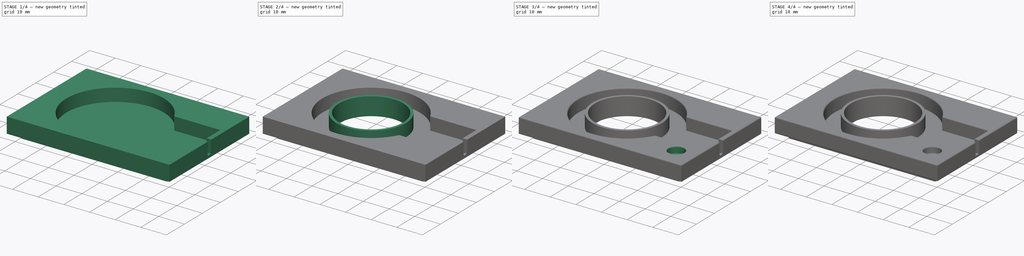
[diagram: build sequence overview — one tinted view per stage of 4, left to right]
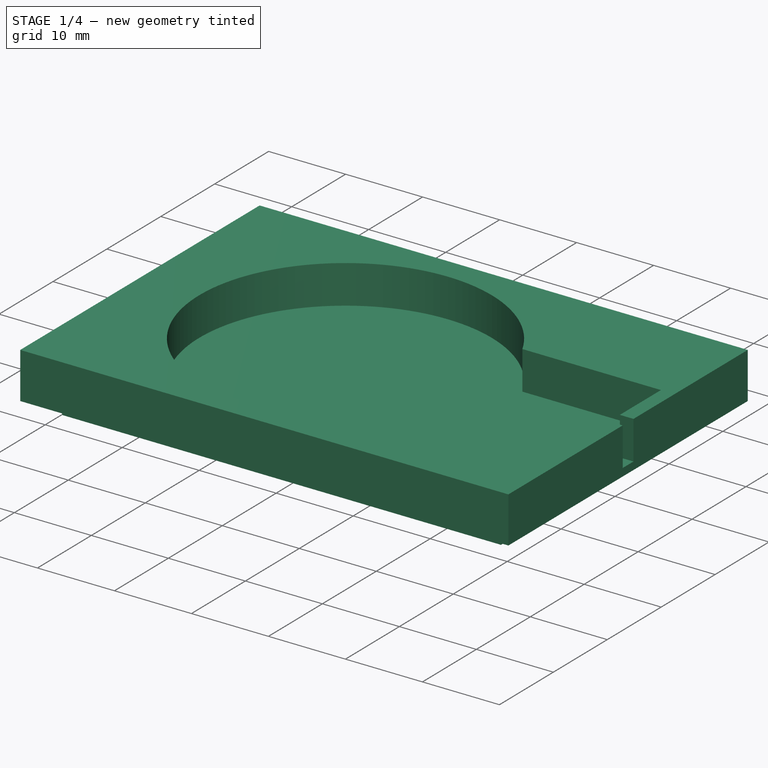
[diagram: stage 1 of 4 — iso view after this stage's code; geometry added in this stage tinted green]
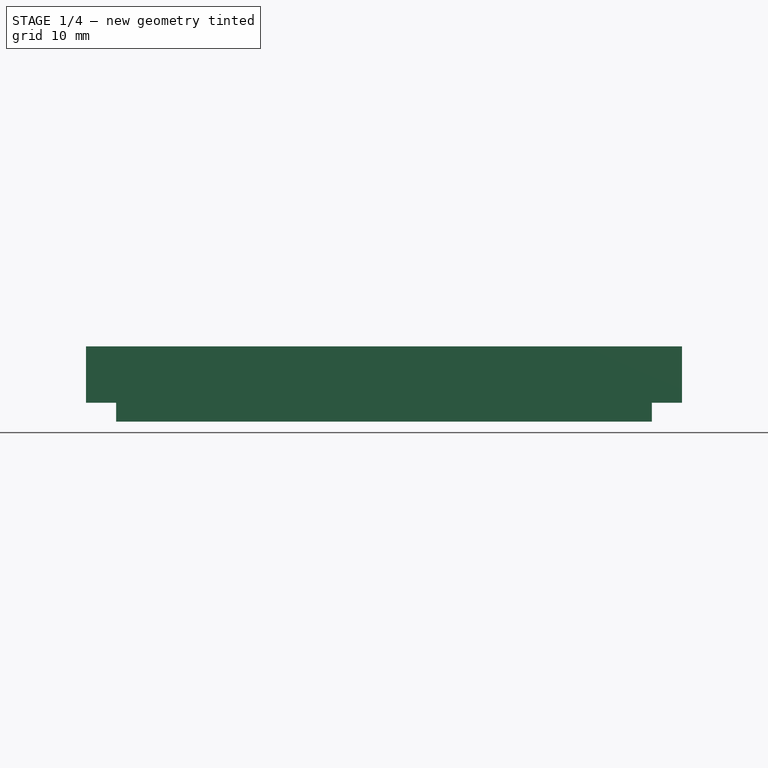
[diagram: stage 1 of 4 — front view after this stage's code; geometry added in this stage tinted green]
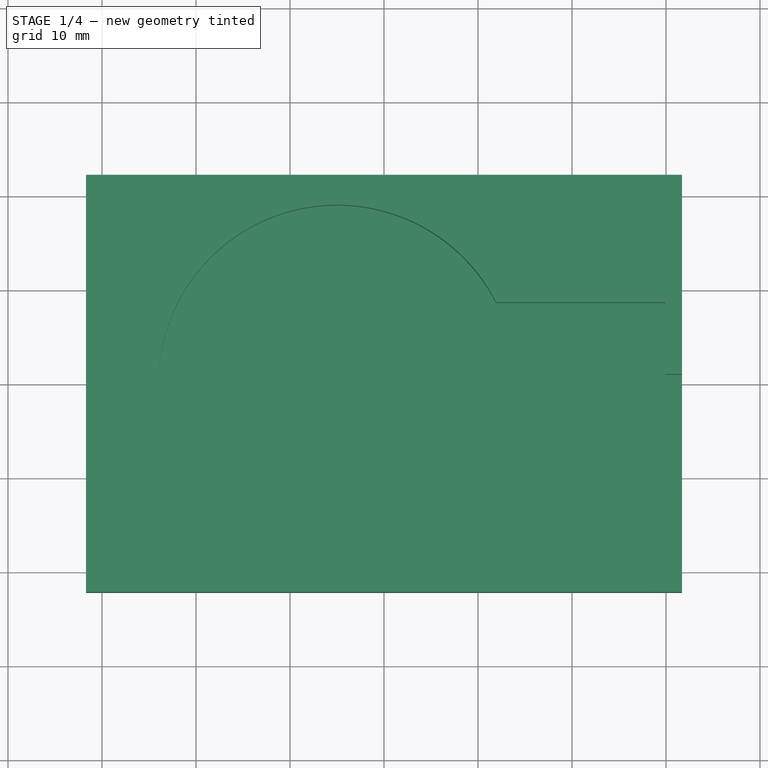
[diagram: stage 1 of 4 — top view after this stage's code; geometry added in this stage tinted green]
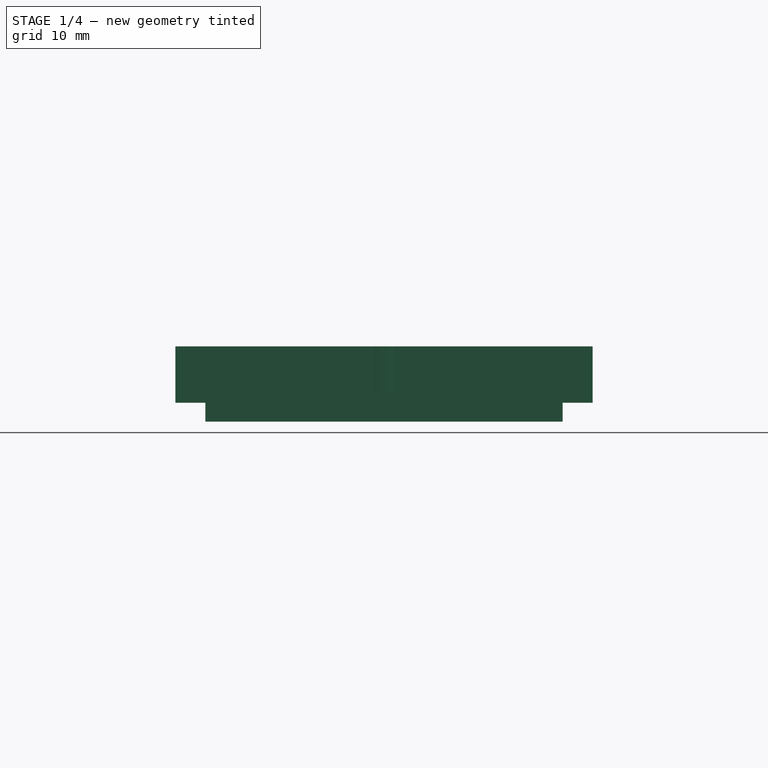
[diagram: stage 1 of 4 — right view after this stage's code; geometry added in this stage tinted green]
FCSTD DOCUMENT  (FreeCAD 0.19R24291 (Git))
Label: bruker7t_fus_single_coil3_shallow
License: All rights reserved
LicenseURL: http://en.wikipedia.org/wiki/All_rights_reserved
objects: Sketcher::SketchObject×8, PartDesign::Pocket×5, PartDesign::Pad×3, PartDesign::Fillet×2, Part::FeaturePython×1, PartDesign::Body×1, Part::Cut×1
note: 31 computed .brp shape members not serialized (recipe doc carries the construction recipe); baked Part::Feature solids carry a one-line shape summary decoded from their .brp

FEATURE [Sketcher::SketchObject] Sketch
  FullyConstrained = true
  MapMode = 5
  Support = -> [XY_Plane001]
  sketch-geometry (4):
    g0: LineSegment StartX=-31.7 StartY=22.2 StartZ=0 EndX=31.7 EndY=22.2 EndZ=0
    g1: LineSegment StartX=31.7 StartY=22.2 StartZ=0 EndX=31.7 EndY=-22.2 EndZ=0
    g2: LineSegment StartX=31.7 StartY=-22.2 StartZ=0 EndX=-31.7 EndY=-22.2 EndZ=0
    g3: LineSegment StartX=-31.7 StartY=-22.2 StartZ=0 EndX=-31.7 EndY=22.2 EndZ=0
  constraints (10):
    c: Coincident(g0,g1)
    c: Coincident(g1,g2)
    c: Coincident(g2,g3)
    c: Coincident(g3,g0)
    c: Horizontal(g2)
    c: Vertical(g1)
    c: Symmetric(g2,g0,g-1)
    c: Symmetric(g0,g0,g-2)
    c: DistanceX(g0,g0) = 63.4
    c: DistanceY(g3,g3) = 44.4
FEATURE [PartDesign::Pad] Pad  label="top_pad"
  Direction = (1,1,1)
  Length = 6
  Length2 = 0
  Profile = -> Sketch
  Refine = true
  Type = 0
FEATURE [Sketcher::SketchObject] Sketch001
  FullyConstrained = true
  MapMode = 5
  Placement = pos=(0,0,6) rot=(0,0,1;0rad)
  Support = -> [Pad]
  sketch-geometry (10):
    g0: LineSegment StartX=29.9291 StartY=1 StartZ=0 EndX=29.9291 EndY=8.62582 EndZ=0
    g1: LineSegment StartX=29.9291 StartY=8.62582 StartZ=0 EndX=11.9291 EndY=8.62582 EndZ=0
    g2: ArcOfCircle CenterX=-5 CenterY=0 CenterZ=0 NormalX=0 NormalY=0 NormalZ=1 AngleXU=0 Radius=19 StartAngle=0.471239 EndAngle=5.81195
    g3: LineSegment StartX=11.9291 StartY=-8.62582 StartZ=0 EndX=29.9291 EndY=-8.62582 EndZ=0
    g4: LineSegment StartX=29.9291 StartY=-8.62582 StartZ=0 EndX=29.9291 EndY=-1 EndZ=0
    g5: LineSegment StartX=29.9291 StartY=-1 StartZ=0 EndX=41.9291 EndY=-1 EndZ=0
    g6: LineSegment StartX=41.9291 StartY=-1 StartZ=0 EndX=41.9291 EndY=1 EndZ=0
    g7: LineSegment StartX=41.9291 StartY=1 StartZ=0 EndX=29.9291 EndY=1 EndZ=0
    g8: LineSegment StartX=-5 StartY=0 StartZ=0 EndX=11.9291 EndY=-8.62582 EndZ=0
    g9: LineSegment StartX=-5 StartY=0 StartZ=0 EndX=11.9291 EndY=8.62582 EndZ=0
  constraints (30):
    c: Coincident(g0,g1)
    c: Horizontal(g1)
    c: Coincident(g2,g3)
    c: Horizontal(g3)
    c: Coincident(g3,g4)
    c: Coincident(g4,g5)
    c: Horizontal(g5)
    c: Coincident(g5,g6)
    c: Vertical(g6)
    c: Coincident(g6,g7)
    c: Horizontal(g7)
    c: Vertical(g4)
    c: Vertical(g0)
    c: Equal(g4,g0)
    c: Equal(g1,g3)
    c: PointOnObject(g2,g-1)
    c: Radius(g2) = 19
    c: Coincident(g1,g2)
    c: PointOnObject(g2,g-1)
    c: Coincident(g8,g2)
    c: Coincident(g8,g2)
    c: Angle(g8,g-1) = 0.471239
    c: Coincident(g9,g2)
    c: Coincident(g9,g1)
    c: Angle(g-1,g9) = 0.471239
    c: DistanceX(g2,g-1) = 5
    c: DistanceY(g6,g6) = 2
    c: DistanceX(g5,g5) = 12
    c: DistanceX(g3,g3) = 18
    c: Coincident(g7,g0)
FEATURE [PartDesign::Pocket] Pocket  label="top_pocket"
  BaseFeature = -> Pad
  Length = 5
  Length2 = 100
  Profile = -> Sketch001
  Refine = true
  Type = 0
FEATURE [Sketcher::SketchObject] Sketch002
  FullyConstrained = true
  MapMode = 5
  Placement = pos=(0,0,0) rot=(1,0,0;3.14159rad)
  Support = -> [Pocket]
  sketch-geometry (4):
    g0: LineSegment StartX=-28.5 StartY=19 StartZ=0 EndX=28.5 EndY=19 EndZ=0
    g1: LineSegment StartX=28.5 StartY=19 StartZ=0 EndX=28.5 EndY=-19 EndZ=0
    g2: LineSegment StartX=28.5 StartY=-19 StartZ=0 EndX=-28.5 EndY=-19 EndZ=0
    g3: LineSegment StartX=-28.5 StartY=-19 StartZ=0 EndX=-28.5 EndY=19 EndZ=0
  constraints (10):
    c: Coincident(g0,g1)
    c: Coincident(g1,g2)
    c: Coincident(g2,g3)
    c: Coincident(g3,g0)
    c: Horizontal(g2)
    c: Vertical(g1)
    c: Symmetric(g2,g0,g-1)
    c: Symmetric(g0,g0,g-2)
    c: DistanceY(g3,g3) = 38
    c: DistanceX(g2,g2) = 57
FEATURE [PartDesign::Pad] Pad001  label="bottom_box_pad"
  BaseFeature = -> Pocket
  Direction = (1,1,1)
  Length = 2
  Length2 = 100
  Profile = -> Sketch002
  Refine = true
  Type = 0
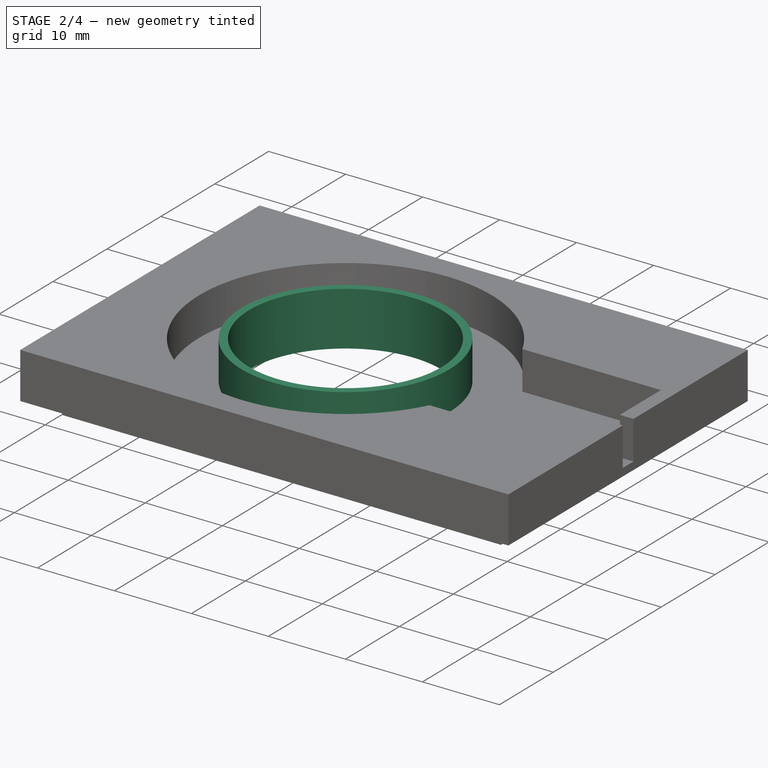
[diagram: stage 2 of 4 — iso view after this stage's code; geometry added in this stage tinted green]
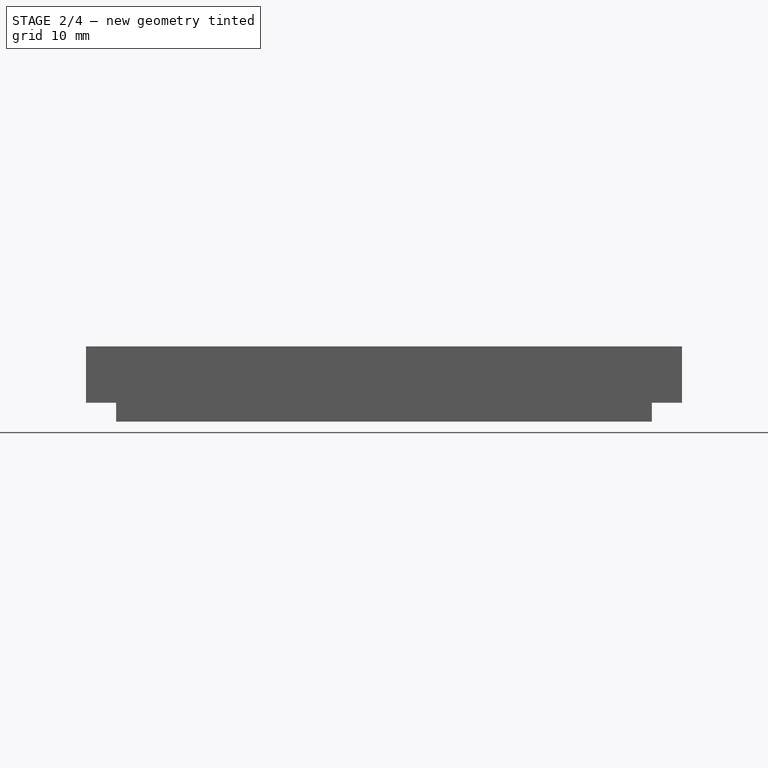
[diagram: stage 2 of 4 — front view after this stage's code; geometry added in this stage tinted green]
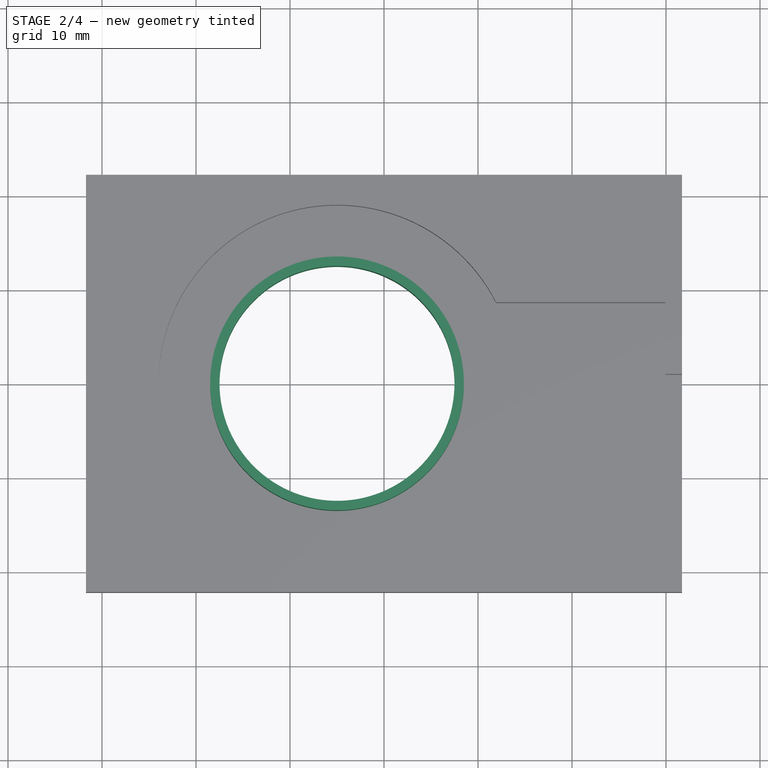
[diagram: stage 2 of 4 — top view after this stage's code; geometry added in this stage tinted green]
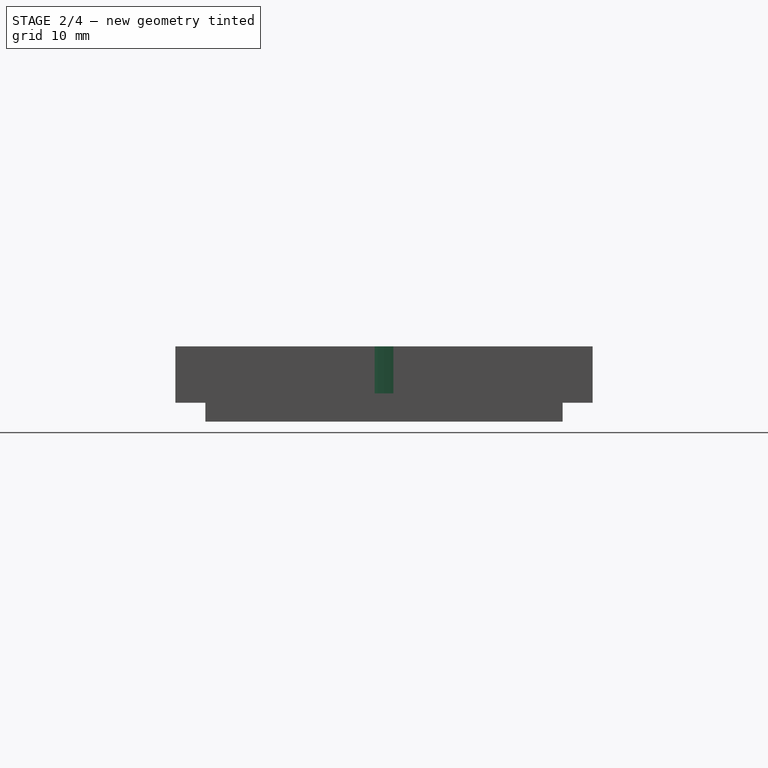
[diagram: stage 2 of 4 — right view after this stage's code; geometry added in this stage tinted green]
FEATURE [Sketcher::SketchObject] Sketch003
  FullyConstrained = true
  MapMode = 5
  Placement = pos=(0,0,-2) rot=(1,0,0;3.14159rad)
  Support = -> [Pad001]
  sketch-geometry (4):
    g0: LineSegment StartX=-26.8 StartY=17.3 StartZ=0 EndX=26.8 EndY=17.3 EndZ=0
    g1: LineSegment StartX=26.8 StartY=17.3 StartZ=0 EndX=26.8 EndY=-17.3 EndZ=0
    g2: LineSegment StartX=26.8 StartY=-17.3 StartZ=0 EndX=-26.8 EndY=-17.3 EndZ=0
    g3: LineSegment StartX=-26.8 StartY=-17.3 StartZ=0 EndX=-26.8 EndY=17.3 EndZ=0
  constraints (10):
    c: Coincident(g0,g1)
    c: Coincident(g1,g2)
    c: Coincident(g2,g3)
    c: Coincident(g3,g0)
    c: Horizontal(g2)
    c: Vertical(g1)
    c: Symmetric(g0,g2,g-1)
    c: Symmetric(g0,g0,g-2)
    c: DistanceX(g0,g0) = 53.6
    c: DistanceY(g3,g3) = 34.6
FEATURE [PartDesign::Pocket] Pocket001  label="bottom_box_pocket"
  BaseFeature = -> Pad001
  Length = 1
  Length2 = 100
  Profile = -> Sketch003
  Refine = true
  Type = 0
FEATURE [Sketcher::SketchObject] Sketch006
  FullyConstrained = true
  MapMode = 5
  Support = -> [XY_Plane001]
  sketch-geometry (1):
    g0: Circle CenterX=-5 CenterY=0 CenterZ=0 NormalX=0 NormalY=0 NormalZ=1 AngleXU=0 Radius=13.5
  constraints (3):
    c: PointOnObject(g0,g-1)
    c: DistanceX(g0,g-1) = 5
    c: Radius(g0) = 13.5
FEATURE [PartDesign::Pad] Pad002
  BaseFeature = -> Pocket001
  Direction = (1,1,1)
  Length = 6
  Length2 = 100
  Profile = -> Sketch006
  Refine = true
  Type = 0
FEATURE [Sketcher::SketchObject] Sketch007
  AttachmentOffset = pos=(0,0,6) rot=(0,0,1;0rad)
  FullyConstrained = true
  MapMode = 5
  Placement = pos=(0,0,6) rot=(0,0,1;0rad)
  Support = -> [XY_Plane001]
  sketch-geometry (1):
    g0: Circle CenterX=-5 CenterY=0 CenterZ=0 NormalX=0 NormalY=0 NormalZ=1 AngleXU=0 Radius=12.5
  constraints (3):
    c: PointOnObject(g0,g-1)
    c: DistanceX(g0,g-1) = 5
    c: Radius(g0) = 12.5
FEATURE [PartDesign::Pocket] Pocket002
  BaseFeature = -> Pad002
  Length = 6
  Length2 = 100
  Profile = -> Sketch007
  Refine = true
  Type = 1
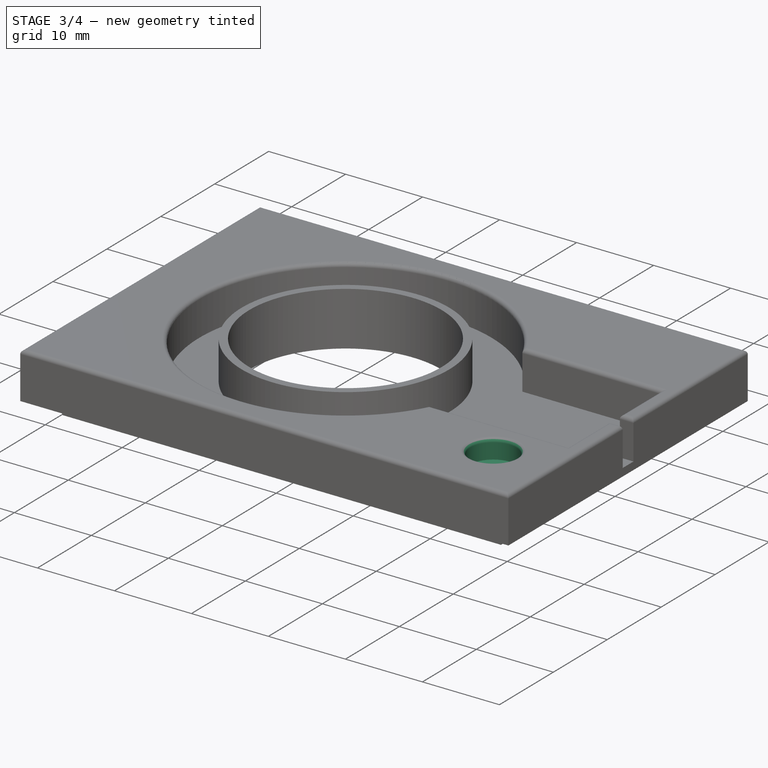
[diagram: stage 3 of 4 — iso view after this stage's code; geometry added in this stage tinted green]
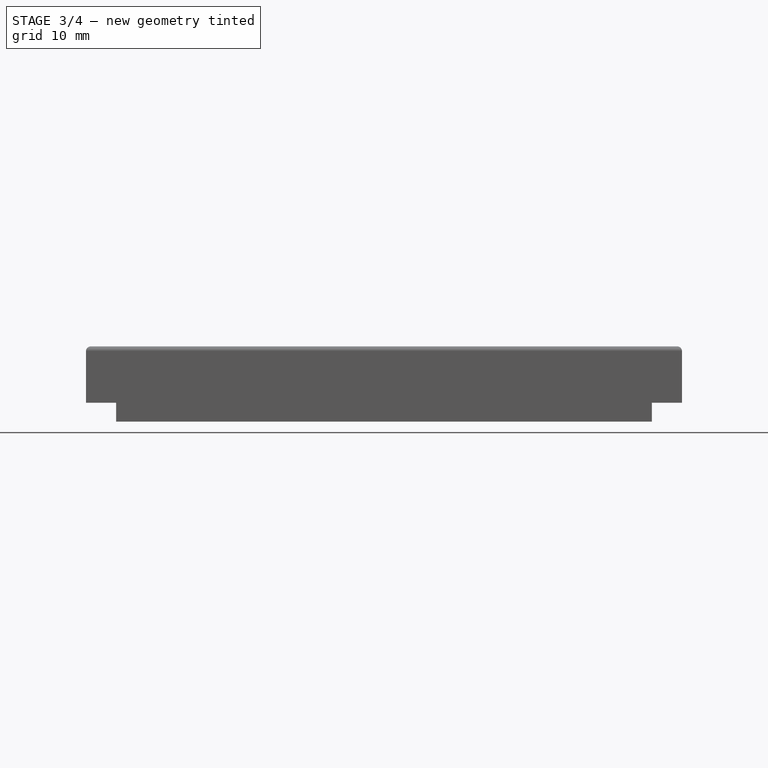
[diagram: stage 3 of 4 — front view after this stage's code; geometry added in this stage tinted green]
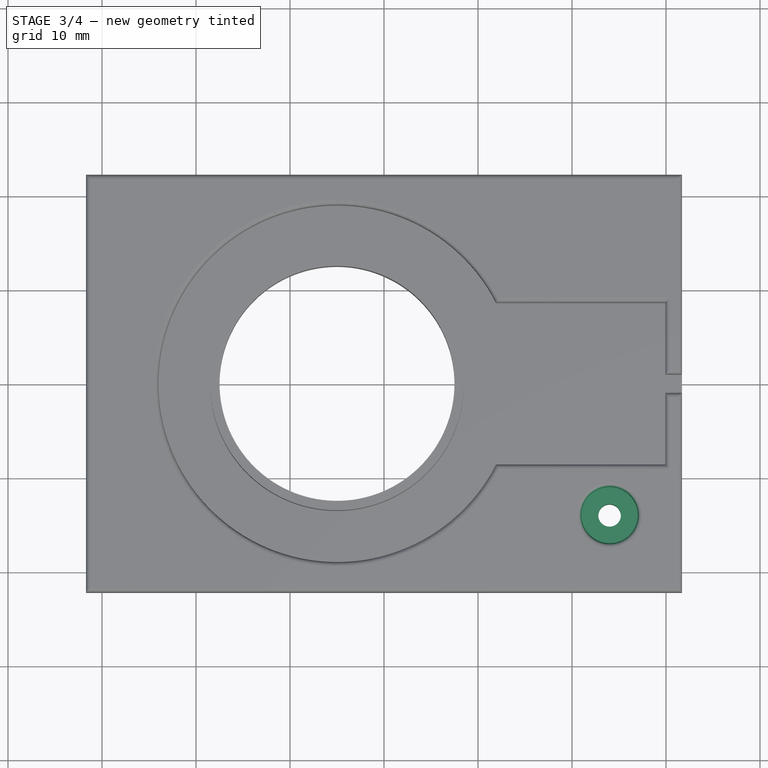
[diagram: stage 3 of 4 — top view after this stage's code; geometry added in this stage tinted green]
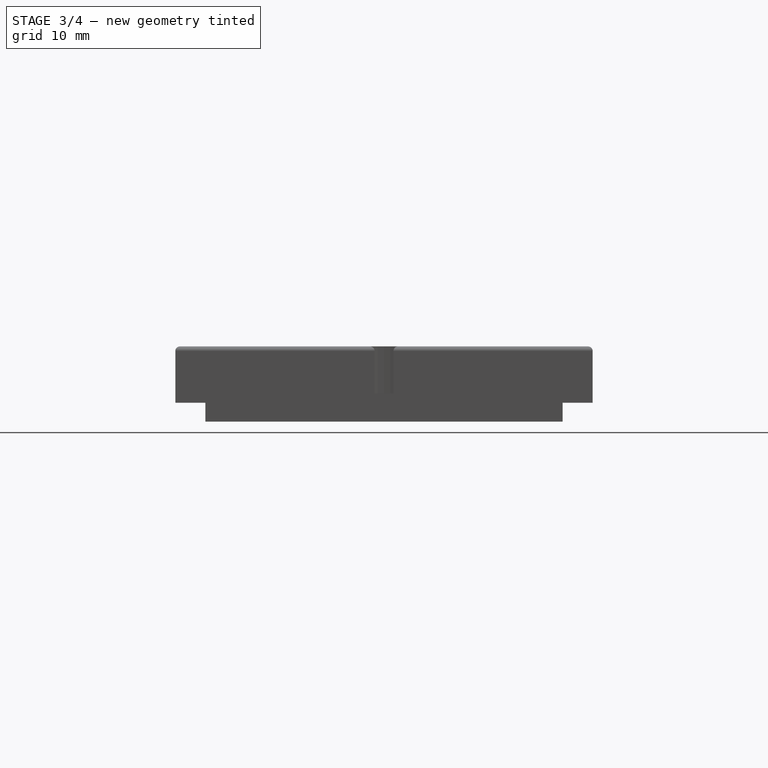
[diagram: stage 3 of 4 — right view after this stage's code; geometry added in this stage tinted green]
FEATURE [Sketcher::SketchObject] Sketch008
  AttachmentOffset = pos=(0,0,6) rot=(0,0,1;0rad)
  FullyConstrained = true
  MapMode = 5
  Placement = pos=(0,0,6) rot=(0,0,1;0rad)
  Support = -> [XY_Plane001]
  sketch-geometry (1):
    g0: Circle CenterX=24 CenterY=-14 CenterZ=0 NormalX=0 NormalY=0 NormalZ=1 AngleXU=0 Radius=1.2
  constraints (3):
    c: DistanceY(g0,g-1) = 14
    c: DistanceX(g-1,g0) = 24
    c: Radius(g0) = 1.2
FEATURE [PartDesign::Pocket] Pocket003
  BaseFeature = -> Pocket002
  Length = 5
  Length2 = 100
  Profile = -> Sketch008
  Refine = true
  Type = 1
FEATURE [Sketcher::SketchObject] Sketch009
  AttachmentOffset = pos=(0,0,6) rot=(0,0,1;0rad)
  FullyConstrained = true
  MapMode = 5
  Placement = pos=(0,0,6) rot=(0,0,1;0rad)
  Support = -> [XY_Plane001]
  sketch-geometry (1):
    g0: Circle CenterX=24 CenterY=-14 CenterZ=0 NormalX=0 NormalY=0 NormalZ=1 AngleXU=0 Radius=3
  constraints (3):
    c: DistanceY(g0,g-1) = 14
    c: DistanceX(g-1,g0) = 24
    c: Radius(g0) = 3
FEATURE [PartDesign::Pocket] Pocket004
  BaseFeature = -> Pocket003
  Length = 2.5
  Length2 = 100
  Profile = -> Sketch009
  Refine = true
  Type = 0
FEATURE [PartDesign::Fillet] Fillet
  Base = -> Pocket004 [Face5]
  BaseFeature = -> Pocket004
  Radius = 0.5
  Refine = true
  SupportTransform = false
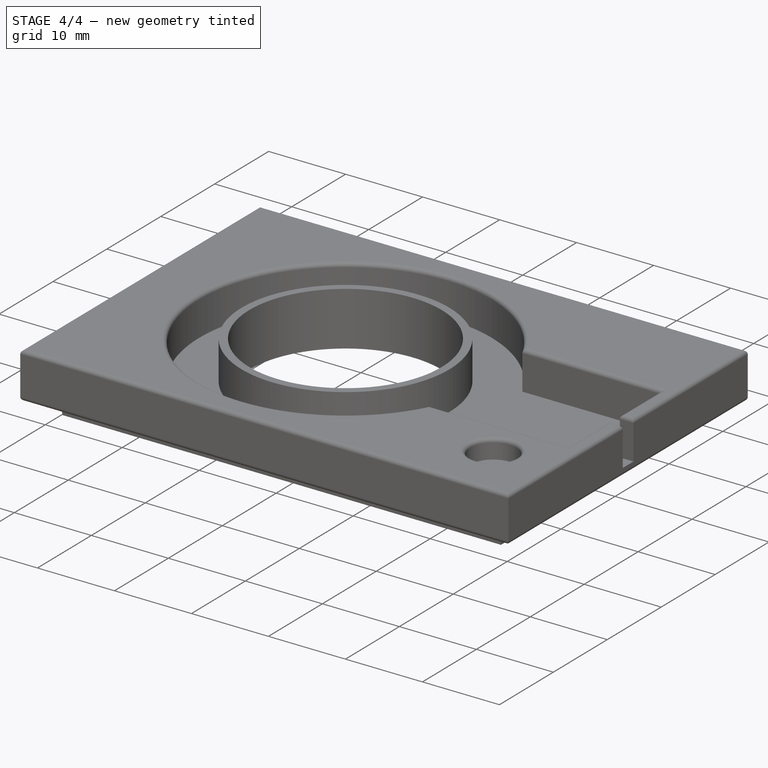
[diagram: stage 4 of 4 — iso view after this stage's code; geometry added in this stage tinted green]
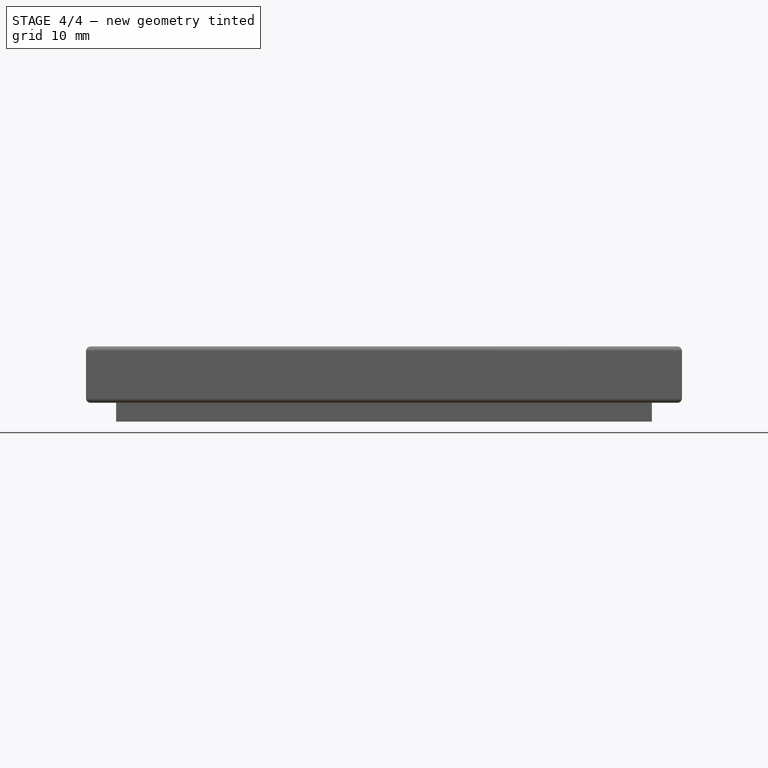
[diagram: stage 4 of 4 — front view after this stage's code; geometry added in this stage tinted green]
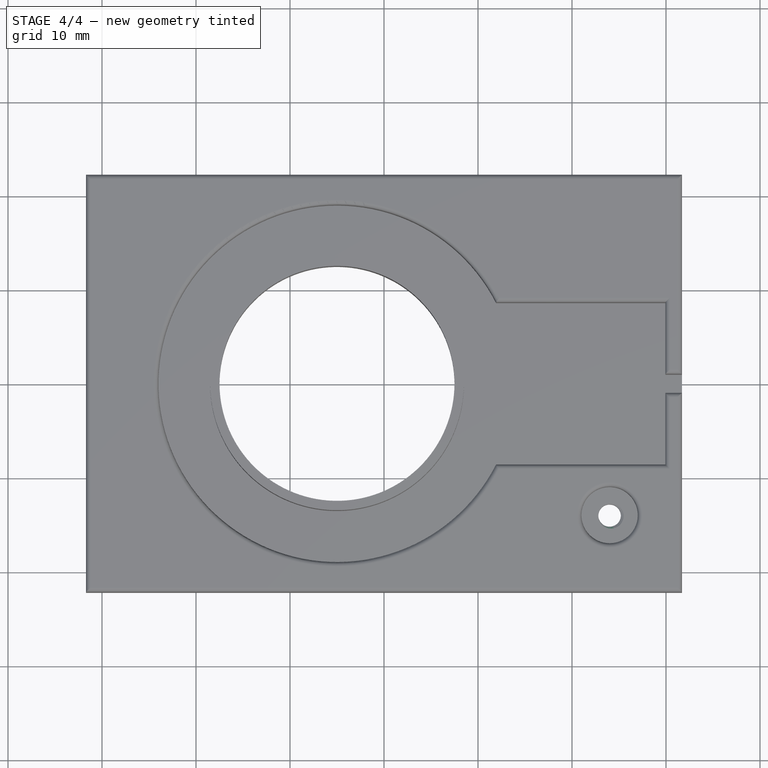
[diagram: stage 4 of 4 — top view after this stage's code; geometry added in this stage tinted green]
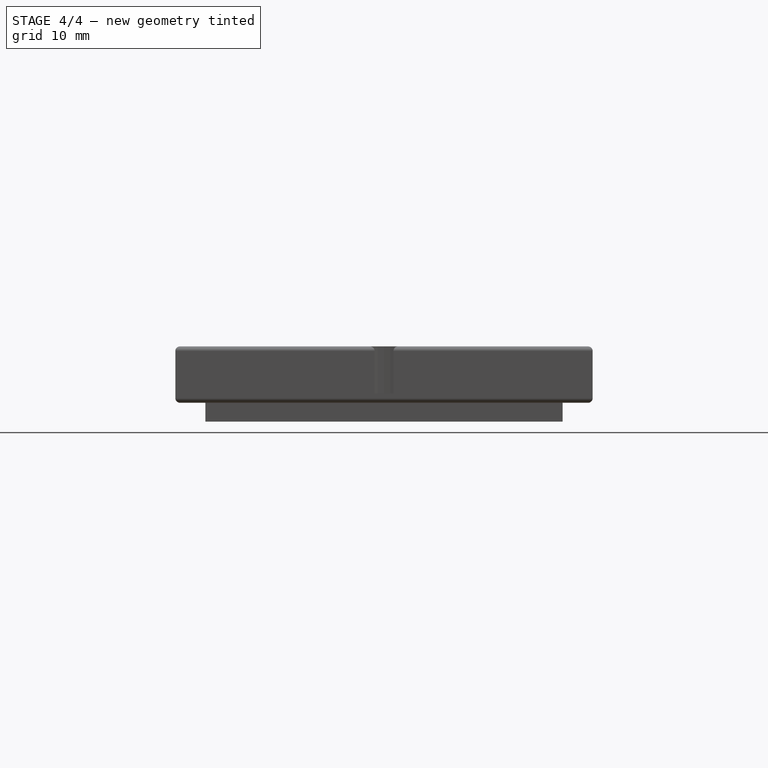
[diagram: stage 4 of 4 — right view after this stage's code; geometry added in this stage tinted green]
FEATURE [Part::FeaturePython] ThreadedRod  label="M3x10.0-ThreadedRod"  # Fasteners workbench fastener (typed FeaturePython)
  Placement = pos=(24,-14,6) rot=(0,0,1;0rad)
  diameter = 4
  invert = false
  length = 10
  matchOuter = false
  offset = 0
  thread = true
FEATURE [PartDesign::Fillet] Fillet001
  Base = -> Fillet [Edge12,Edge7,Edge11,Edge3]
  BaseFeature = -> Fillet
  Radius = 0.5
  Refine = true
  SupportTransform = false
FEATURE [PartDesign::Body] Body
  Group = -> [Sketch,Pad,Sketch001,Pocket,Sketch002,Pad001,Sketch003,Pocket001,Sketch006,Pad002,Sketch007,Pocket002,Sketch008,Pocket003,Sketch009,Pocket004,Fillet,Fillet001]
  Origin = -> Origin001
  Tip = -> Fillet001
FEATURE [Part::Cut] Cut
  Base = -> Body
  Refine = true
  Tool = -> ThreadedRod
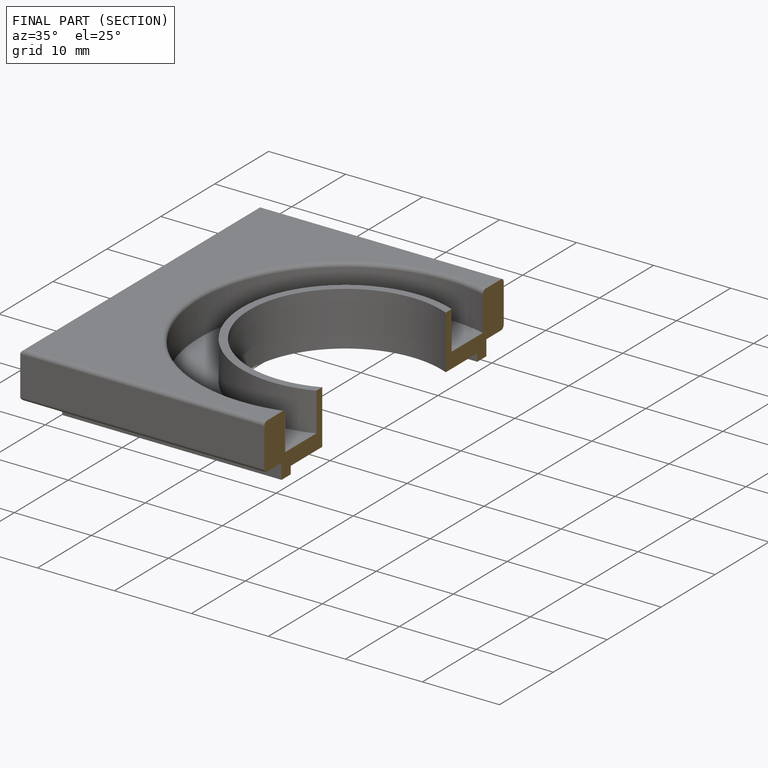
[diagram: finished part — half-section view (interior)]
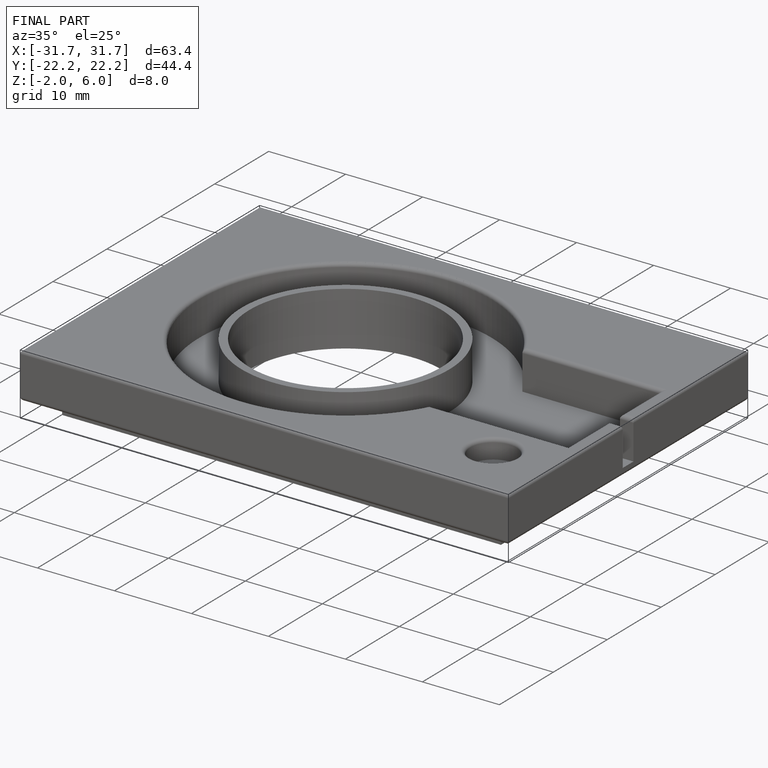
[diagram: finished part — iso view with bounding-box wireframe]
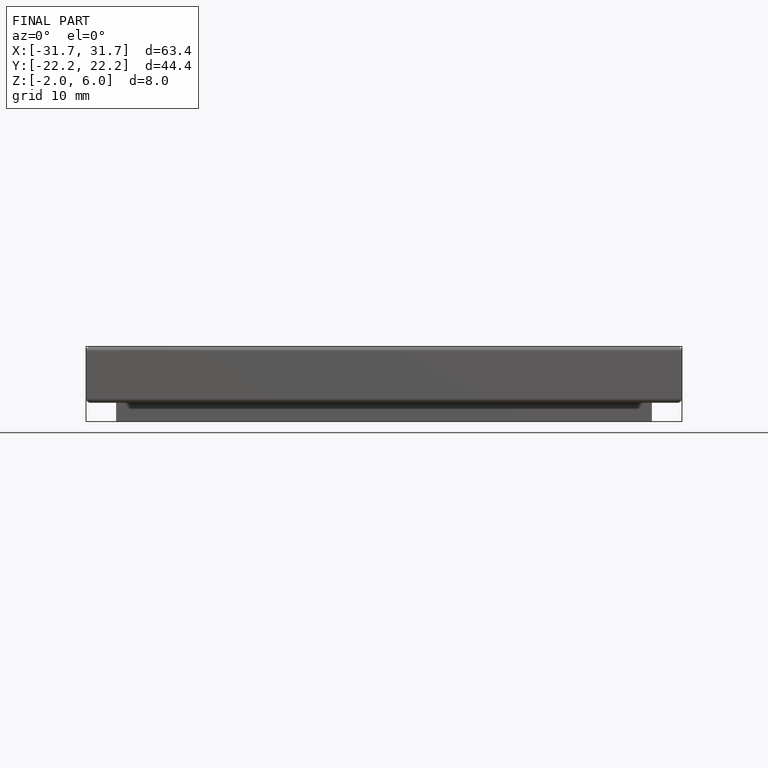
[diagram: finished part — front view with bounding-box wireframe]
